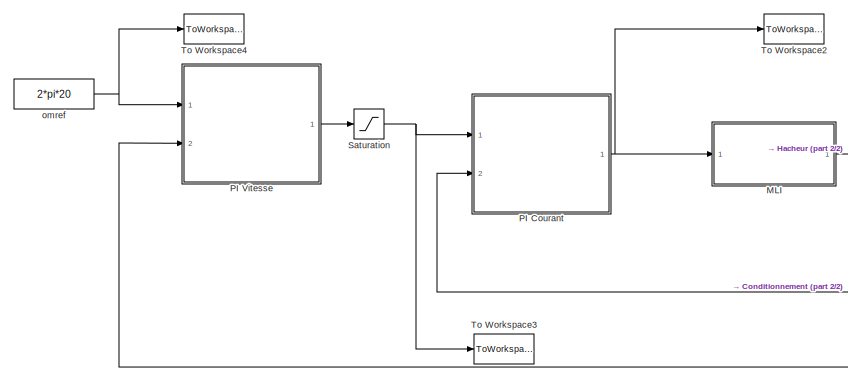
[diagram: root canvas - part 1/2, top left region]
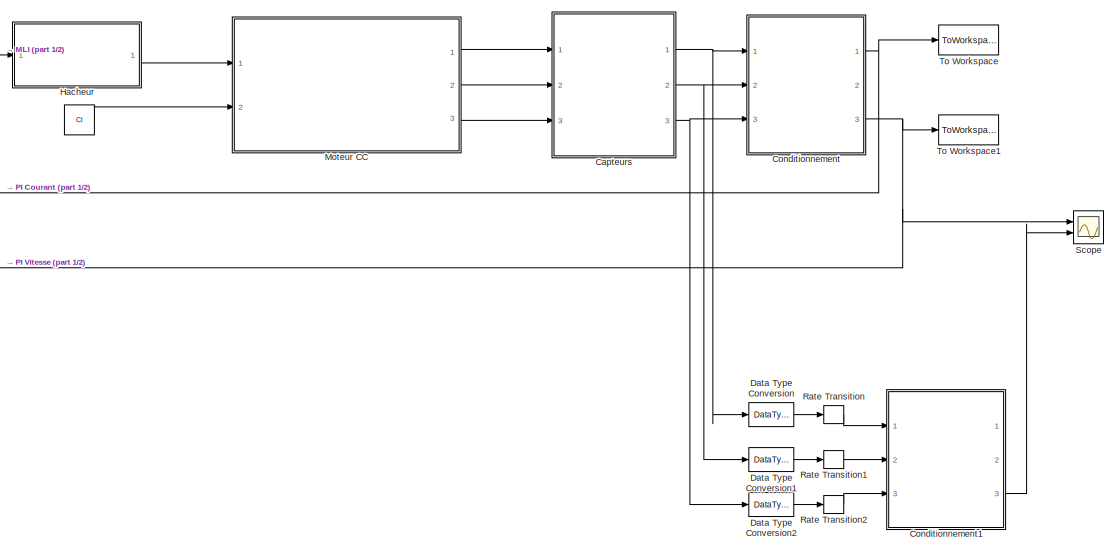
[diagram: root canvas - part 2/2, right side, full height]
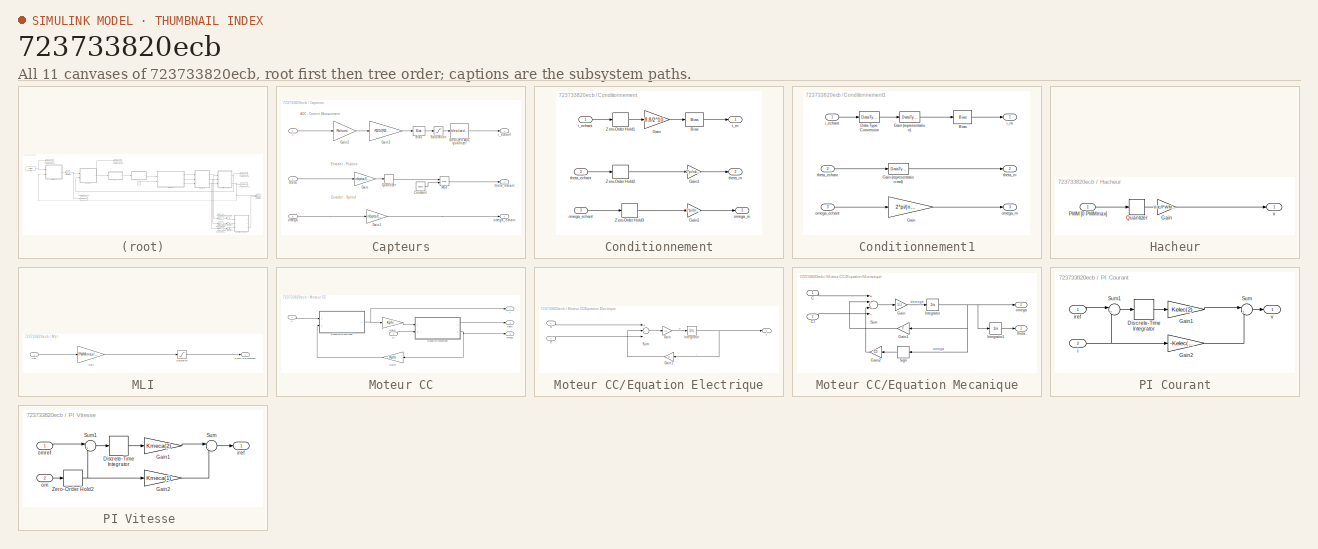
[diagram: thumbnail index - all 11 canvases of the model, root first then tree order]
MODEL slx_723733820ecb
KIND model
CONFIG AbsTol = auto
CONFIG EnableMultiTasking = off
CONFIG FixedStep = 1e-4
CONFIG MaxStep = 1e-4
CONFIG MinStep = auto
CONFIG RelTol = 1e-3
CONFIG SampleTimeConstraint = Unconstrained
CONFIG Solver = VariableStepAuto
CONFIG SolverName = VariableStepAuto
CONFIG StartTime = 0.0
CONFIG StopTime = Tf
BLOCK [Constant]  
  Value = Cl
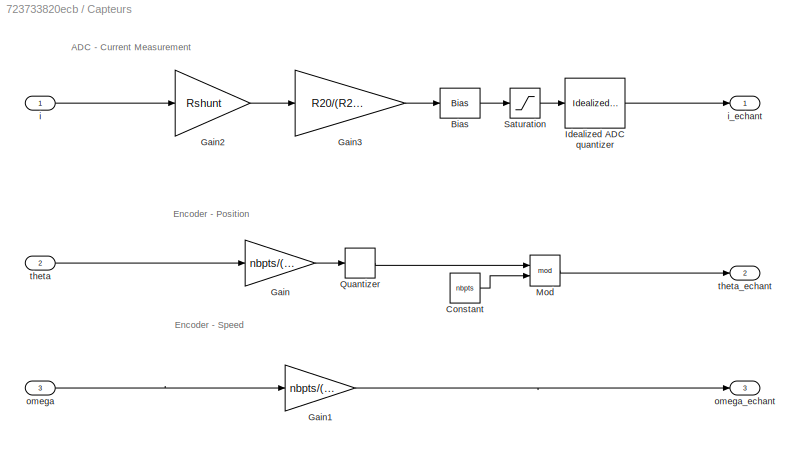
BLOCK [SubSystem] Capteurs
  Ports = [3, 3]
  RequestExecContextInheritance = off
  Variant = off
BLOCK [Bias] Capteurs/Bias
  Bias = Vcc/2
  SaturateOnIntegerOverflow = off
BLOCK [Constant] Capteurs/Constant
  Value = nbpts
BLOCK [Gain] Capteurs/Gain
  Gain = nbpts/(2*pi)
  OutDataTypeStr = Inherit: Inherit via internal rule
  ParamDataTypeStr = Inherit: Inherit via internal rule
  SaturateOnIntegerOverflow = off
BLOCK [Gain] Capteurs/Gain1
  Gain = nbpts/(2*pi)*Ts
  OutDataTypeStr = Inherit: Inherit via internal rule
  ParamDataTypeStr = Inherit: Inherit via internal rule
  SaturateOnIntegerOverflow = off
BLOCK [Gain] Capteurs/Gain2
  Gain = Rshunt
  OutDataTypeStr = Inherit: Inherit via internal rule
  ParamDataTypeStr = Inherit: Inherit via internal rule
  SaturateOnIntegerOverflow = off
BLOCK [Gain] Capteurs/Gain3
  Gain = R20/(R22+R23)
  OutDataTypeStr = Inherit: Inherit via internal rule
  ParamDataTypeStr = Inherit: Inherit via internal rule
  SaturateOnIntegerOverflow = off
BLOCK [Reference] Capteurs/Idealized ADC quantizer  REF=simulink_extras/Additional
Discrete/Idealized ADC quantizer
  AttributesFormatString = (settings: %<NumberOfConverterBits>-bit converter\nVmin: %<Vmin>, Vmax: %<Vmax>)
  Ports = [1, 1]
  SourceBlock = simulink_extras/Additional\nDiscrete/Idealized ADC quantizer
  SourceProductBaseCode = SL
  SourceProductName = Simulink
  SourceType = IdealADC
BLOCK [Math] Capteurs/Mod
  Operator = mod
  Ports = [2, 1]
BLOCK [Quantizer] Capteurs/Quantizer
  QuantizationInterval = 1
BLOCK [Saturate] Capteurs/Saturation
  InputPortMap = u0
  LowerLimit = 0
  Ports = [1, 1]
  UpperLimit = Vcc
BLOCK [Inport] Capteurs/i
  IconDisplay = Port number
BLOCK [Outport] Capteurs/i_echant
  IconDisplay = Port number
BLOCK [Inport] Capteurs/omega
  IconDisplay = Port number
  Port = 3
BLOCK [Outport] Capteurs/omega_echant
  IconDisplay = Port number
  Port = 3
BLOCK [Inport] Capteurs/theta
  IconDisplay = Port number
  Port = 2
BLOCK [Outport] Capteurs/theta_echant
  IconDisplay = Port number
  Port = 2
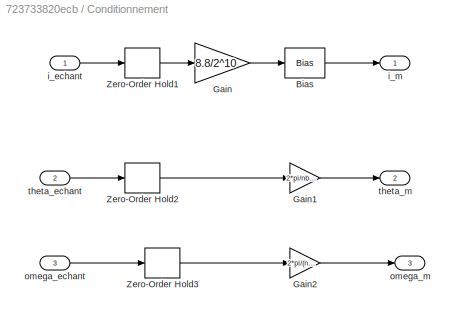
BLOCK [SubSystem] Conditionnement
  Ports = [3, 3]
  RequestExecContextInheritance = off
  Variant = off
BLOCK [Bias] Conditionnement/Bias
  Bias = -4.4
  SaturateOnIntegerOverflow = off
BLOCK [Gain] Conditionnement/Gain
  Gain = 8.8/2^10
  OutDataTypeStr = Inherit: Inherit via internal rule
  ParamDataTypeStr = Inherit: Inherit via internal rule
  SaturateOnIntegerOverflow = off
BLOCK [Gain] Conditionnement/Gain1
  Gain = 2*pi/nbpts
  OutDataTypeStr = Inherit: Inherit via internal rule
  ParamDataTypeStr = Inherit: Inherit via internal rule
  SaturateOnIntegerOverflow = off
BLOCK [Gain] Conditionnement/Gain2
  Gain = 2*pi/(nbpts*Ts)
  OutDataTypeStr = Inherit: Inherit via internal rule
  ParamDataTypeStr = Inherit: Inherit via internal rule
  SaturateOnIntegerOverflow = off
BLOCK [ZeroOrderHold] Conditionnement/Zero-Order Hold1
  SampleTime = Ts
BLOCK [ZeroOrderHold] Conditionnement/Zero-Order Hold2
  SampleTime = Ts
BLOCK [ZeroOrderHold] Conditionnement/Zero-Order Hold3
  SampleTime = Ts
BLOCK [Inport] Conditionnement/i_echant
  IconDisplay = Port number
BLOCK [Outport] Conditionnement/i_m
  IconDisplay = Port number
BLOCK [Inport] Conditionnement/omega_echant
  IconDisplay = Port number
  Port = 3
BLOCK [Outport] Conditionnement/omega_m
  IconDisplay = Port number
  Port = 3
BLOCK [Inport] Conditionnement/theta_echant
  IconDisplay = Port number
  Port = 2
BLOCK [Outport] Conditionnement/theta_m
  IconDisplay = Port number
  Port = 2
BLOCK [SubSystem] Conditionnement1
  Ports = [3, 3]
  RequestExecContextInheritance = off
  Variant = off
BLOCK [Bias] Conditionnement1/Bias
  Bias = -4.4
  SaturateOnIntegerOverflow = off
BLOCK [DataTypeConversion] Conditionnement1/Data Type Conversion
  OutDataTypeStr = int16
  RndMeth = Floor
  SaturateOnIntegerOverflow = off
BLOCK [Gain] Conditionnement1/Gain
  Gain = 2*pi/(nbpts *Ts)
  OutDataTypeStr = fixdt(1,16)
  OutMax = [100]
  OutMin = [-100]
  ParamDataTypeStr = Inherit: Inherit via internal rule
  SaturateOnIntegerOverflow = off
BLOCK [DataTypeConversion] Conditionnement1/Gain (representation rad)
  ConvertRealWorld = Stored Integer (SI)
  OutDataTypeStr = fixdt(1,16,2*pi/nbpts,0)
  RndMeth = Floor
  SaturateOnIntegerOverflow = off
BLOCK [DataTypeConversion] Conditionnement1/Gain (representation)
  ConvertRealWorld = Stored Integer (SI)
  OutDataTypeStr = fixdt(1,16,8.8/2^10,0)
  RndMeth = Floor
  SaturateOnIntegerOverflow = off
BLOCK [Inport] Conditionnement1/i_echant
  IconDisplay = Port number
BLOCK [Outport] Conditionnement1/i_m
  IconDisplay = Port number
BLOCK [Inport] Conditionnement1/omega_echant
  IconDisplay = Port number
  Port = 3
BLOCK [Outport] Conditionnement1/omega_m
  IconDisplay = Port number
  Port = 3
BLOCK [Inport] Conditionnement1/theta_echant
  IconDisplay = Port number
  Port = 2
BLOCK [Outport] Conditionnement1/theta_m
  IconDisplay = Port number
  Port = 2
BLOCK [DataTypeConversion] Data Type Conversion
  OutDataTypeStr = uint16
  RndMeth = Floor
  SaturateOnIntegerOverflow = off
BLOCK [DataTypeConversion] Data Type Conversion1
  OutDataTypeStr = int16
  RndMeth = Floor
  SaturateOnIntegerOverflow = off
BLOCK [DataTypeConversion] Data Type Conversion2
  OutDataTypeStr = int16
  RndMeth = Floor
  SaturateOnIntegerOverflow = off
BLOCK [SubSystem] Hacheur
  Ports = [1, 1]
  RequestExecContextInheritance = off
  Variant = off
BLOCK [Gain] Hacheur/Gain
  Gain = Vdc/PWMmax
  OutDataTypeStr = Inherit: Inherit via internal rule
  ParamDataTypeStr = Inherit: Inherit via internal rule
  SaturateOnIntegerOverflow = off
BLOCK [Inport] Hacheur/PWM [0 PWMmax]
  IconDisplay = Port number
BLOCK [Quantizer] Hacheur/Quantizer
  QuantizationInterval = 1
BLOCK [Outport] Hacheur/v
  IconDisplay = Port number
BLOCK [SubSystem] MLI
  Ports = [1, 1]
  RequestExecContextInheritance = off
  Variant = off
BLOCK [Gain] MLI/Gain
  Gain = PWMmax/Vdc
  OutDataTypeStr = Inherit: Inherit via internal rule
  ParamDataTypeStr = Inherit: Inherit via internal rule
  SaturateOnIntegerOverflow = off
BLOCK [Outport] MLI/PWM [0 PWMmax]
  IconDisplay = Port number
BLOCK [Saturate] MLI/Saturation
  InputPortMap = u0
  Ports = [1, 1]
  UpperLimit = PWMmax
BLOCK [Inport] MLI/Vdc
  IconDisplay = Port number
BLOCK [SubSystem] Moteur CC
  Ports = [2, 3]
  RequestExecContextInheritance = off
  Variant = off
BLOCK [Inport] Moteur CC/Cl
  IconDisplay = Port number
  Port = 2
BLOCK [SubSystem] Moteur CC/Equation Electrique
  Ports = [2, 1]
  RequestExecContextInheritance = off
  Variant = off
BLOCK [Gain] Moteur CC/Equation Electrique/Gain
  Gain = 1/L
  OutDataTypeStr = Inherit: Inherit via internal rule
  ParamDataTypeStr = Inherit: Inherit via internal rule
  SaturateOnIntegerOverflow = off
BLOCK [Gain] Moteur CC/Equation Electrique/Gain1
  Gain = R
  OutDataTypeStr = Inherit: Inherit via internal rule
  ParamDataTypeStr = Inherit: Inherit via internal rule
  SaturateOnIntegerOverflow = off
BLOCK [Integrator] Moteur CC/Equation Electrique/Integrator
  Ports = [1, 1]
BLOCK [Sum] Moteur CC/Equation Electrique/Sum
  InputSameDT = off
  Inputs = +--
  OutDataTypeStr = Inherit: Inherit via internal rule
  Ports = [3, 1]
  SaturateOnIntegerOverflow = off
BLOCK [Inport] Moteur CC/Equation Electrique/e
  IconDisplay = Port number
  Port = 2
BLOCK [Outport] Moteur CC/Equation Electrique/i
  IconDisplay = Port number
BLOCK [Inport] Moteur CC/Equation Electrique/v
  IconDisplay = Port number
BLOCK [SubSystem] Moteur CC/Equation Mecanique
  Ports = [2, 2]
  RequestExecContextInheritance = off
  Variant = off
BLOCK [Inport] Moteur CC/Equation Mecanique/C
  IconDisplay = Port number
BLOCK [Inport] Moteur CC/Equation Mecanique/Cl
  IconDisplay = Port number
  Port = 2
BLOCK [Gain] Moteur CC/Equation Mecanique/Gain
  Gain = 1/J
  OutDataTypeStr = Inherit: Inherit via internal rule
  ParamDataTypeStr = Inherit: Inherit via internal rule
  SaturateOnIntegerOverflow = off
BLOCK [Gain] Moteur CC/Equation Mecanique/Gain1
  Gain = F
  OutDataTypeStr = Inherit: Inherit via internal rule
  ParamDataTypeStr = Inherit: Inherit via internal rule
  SaturateOnIntegerOverflow = off
BLOCK [Gain] Moteur CC/Equation Mecanique/Gain2
  Gain = C0
  OutDataTypeStr = Inherit: Inherit via internal rule
  ParamDataTypeStr = Inherit: Inherit via internal rule
  SaturateOnIntegerOverflow = off
BLOCK [Integrator] Moteur CC/Equation Mecanique/Integrator
  Ports = [1, 1]
BLOCK [Integrator] Moteur CC/Equation Mecanique/Integrator1
  Ports = [1, 1]
BLOCK [Signum] Moteur CC/Equation Mecanique/Sign
BLOCK [Sum] Moteur CC/Equation Mecanique/Sum
  InputSameDT = off
  Inputs = +-+-
  OutDataTypeStr = Inherit: Inherit via internal rule
  Ports = [4, 1]
  SaturateOnIntegerOverflow = off
BLOCK [Outport] Moteur CC/Equation Mecanique/omega
  IconDisplay = Port number
  Port = 2
BLOCK [Outport] Moteur CC/Equation Mecanique/theta
  IconDisplay = Port number
BLOCK [Gain] Moteur CC/Gain1
  Gain = Kphi
  OutDataTypeStr = Inherit: Inherit via internal rule
  ParamDataTypeStr = Inherit: Inherit via internal rule
  SaturateOnIntegerOverflow = off
BLOCK [Gain] Moteur CC/Gain3  
  Gain = Kphi
  OutDataTypeStr = Inherit: Inherit via internal rule
  ParamDataTypeStr = Inherit: Inherit via internal rule
  SaturateOnIntegerOverflow = off
BLOCK [Outport] Moteur CC/i
  IconDisplay = Port number
BLOCK [Outport] Moteur CC/omega
  IconDisplay = Port number
  Port = 3
BLOCK [Outport] Moteur CC/theta
  IconDisplay = Port number
  Port = 2
BLOCK [Inport] Moteur CC/v
  IconDisplay = Port number
BLOCK [SubSystem] PI Courant
  Ports = [2, 1]
  RequestExecContextInheritance = off
  TreatAsAtomicUnit = on
  Variant = off
BLOCK [DiscreteIntegrator] PI Courant/Discrete-Time Integrator
  ICPrevOutput = DiscIntNeverNeededParam
  ICPrevScaledInput = DiscIntNeverNeededParam
  InitialConditionSetting = State (most efficient)
  Ports = [1, 1]
  SampleTime = -1
BLOCK [Gain] PI Courant/Gain1
  Gain = Kelec(2)
  OutDataTypeStr = Inherit: Inherit via internal rule
  ParamDataTypeStr = Inherit: Inherit via internal rule
  SaturateOnIntegerOverflow = off
BLOCK [Gain] PI Courant/Gain2
  Gain = -Kelec(1)
  OutDataTypeStr = Inherit: Inherit via internal rule
  ParamDataTypeStr = Inherit: Inherit via internal rule
  SaturateOnIntegerOverflow = off
BLOCK [Sum] PI Courant/Sum
  IconShape = round
  InputSameDT = off
  Inputs = |+-
  OutDataTypeStr = Inherit: Inherit via internal rule
  Ports = [2, 1]
  SaturateOnIntegerOverflow = off
BLOCK [Sum] PI Courant/Sum1
  IconShape = round
  InputSameDT = off
  Inputs = |+-
  OutDataTypeStr = Inherit: Inherit via internal rule
  Ports = [2, 1]
  SaturateOnIntegerOverflow = off
BLOCK [Inport] PI Courant/i
  IconDisplay = Port number
  Port = 2
BLOCK [Inport] PI Courant/iref
  IconDisplay = Port number
BLOCK [Outport] PI Courant/v
  IconDisplay = Port number
BLOCK [SubSystem] PI Vitesse 
  Ports = [2, 1]
  RequestExecContextInheritance = off
  TreatAsAtomicUnit = on
  Variant = off
BLOCK [DiscreteIntegrator] PI Vitesse /Discrete-Time Integrator
  ICPrevOutput = DiscIntNeverNeededParam
  ICPrevScaledInput = DiscIntNeverNeededParam
  InitialConditionSetting = State (most efficient)
  Ports = [1, 1]
  SampleTime = -1
BLOCK [Gain] PI Vitesse /Gain1
  Gain = Kmeca(2)
  OutDataTypeStr = Inherit: Inherit via internal rule
  ParamDataTypeStr = Inherit: Inherit via internal rule
  SaturateOnIntegerOverflow = off
BLOCK [Gain] PI Vitesse /Gain2
  Gain = Kmeca(1)
  OutDataTypeStr = Inherit: Inherit via internal rule
  ParamDataTypeStr = Inherit: Inherit via internal rule
  SaturateOnIntegerOverflow = off
BLOCK [Sum] PI Vitesse /Sum
  IconShape = round
  InputSameDT = off
  Inputs = |--
  OutDataTypeStr = Inherit: Inherit via internal rule
  Ports = [2, 1]
  SaturateOnIntegerOverflow = off
BLOCK [Sum] PI Vitesse /Sum1
  IconShape = round
  InputSameDT = off
  Inputs = |+-
  OutDataTypeStr = Inherit: Inherit via internal rule
  Ports = [2, 1]
  SaturateOnIntegerOverflow = off
BLOCK [ZeroOrderHold] PI Vitesse /Zero-Order Hold2
  SampleTime = Tsmeca
BLOCK [Outport] PI Vitesse /iref
  IconDisplay = Port number
BLOCK [Inport] PI Vitesse /om
  IconDisplay = Port number
  Port = 2
BLOCK [Inport] PI Vitesse /omref
  IconDisplay = Port number
BLOCK [RateTransition] Rate Transition
  Deterministic = off
  OutPortSampleTime = Ts
BLOCK [RateTransition] Rate Transition1
  Deterministic = off
  OutPortSampleTime = Ts
BLOCK [RateTransition] Rate Transition2
  Deterministic = off
  OutPortSampleTime = Ts
BLOCK [Saturate] Saturation
  InputPortMap = u0
  LowerLimit = -Imax
  Ports = [1, 1]
  UpperLimit = Imax
BLOCK [Scope] Scope
  NumInputPorts = 2
  Ports = [2]
  ScopeSpecificationString = Simulink.scopes.TimeScopeBlockCfg('CurrentConfiguration', extmgr.ConfigurationSet(extmgr.Configuration('Core','General UI',true),extmgr.Configuration('Core','Source UI',true),extmgr.Configuration('Sources','WiredSimulink',true),extmgr.Configuration('Visuals','Time Domain',true,'SerializedDisplays',{struct('MinYLimReal','-0.83124','MaxYLimReal','7.48113','YLabelReal','','MinYLimMag','0.00000','MaxY...<+2014ch>
BLOCK [ToWorkspace] To Workspace
  FixptAsFi = on
  MaxDataPoints = inf
  Ports = [1]
  SampleTime = -1
  Save2DSignal = 3-D array (concatenate along third dimension)
  SaveFormat = Timeseries
  VariableName = i
BLOCK [ToWorkspace] To Workspace1
  FixptAsFi = on
  MaxDataPoints = inf
  Ports = [1]
  SampleTime = -1
  Save2DSignal = 3-D array (concatenate along third dimension)
  SaveFormat = Timeseries
  VariableName = omega
BLOCK [ToWorkspace] To Workspace2
  FixptAsFi = on
  MaxDataPoints = inf
  Ports = [1]
  SampleTime = -1
  Save2DSignal = 3-D array (concatenate along third dimension)
  SaveFormat = Timeseries
  VariableName = v
BLOCK [ToWorkspace] To Workspace3
  FixptAsFi = on
  MaxDataPoints = inf
  Ports = [1]
  SampleTime = -1
  Save2DSignal = 3-D array (concatenate along third dimension)
  SaveFormat = Timeseries
  VariableName = iref
BLOCK [ToWorkspace] To Workspace4
  FixptAsFi = on
  MaxDataPoints = inf
  Ports = [1]
  SampleTime = -1
  Save2DSignal = 3-D array (concatenate along third dimension)
  SaveFormat = Timeseries
  VariableName = omref
BLOCK [Constant] omref
  Value = 2*pi*20
ANNOTATION Capteurs: ADC - Current Measurement
ANNOTATION Capteurs: Encoder - Position
ANNOTATION Capteurs: Encoder - Speed
LINE  :1 -> Moteur CC:2
LINE Capteurs/Bias:1 -> Capteurs/Saturation:1
LINE Capteurs/Constant:1 -> Capteurs/Mod:2
LINE Capteurs/Gain1:1 -> Capteurs/omega_echant:1
LINE Capteurs/Gain2:1 -> Capteurs/Gain3:1
LINE Capteurs/Gain3:1 -> Capteurs/Bias:1
LINE Capteurs/Gain:1 -> Capteurs/Quantizer:1
LINE Capteurs/Idealized ADC quantizer:1 -> Capteurs/i_echant:1
LINE Capteurs/Mod:1 -> Capteurs/theta_echant:1
LINE Capteurs/Quantizer:1 -> Capteurs/Mod:1
LINE Capteurs/Saturation:1 -> Capteurs/Idealized ADC quantizer:1
LINE Capteurs/i:1 -> Capteurs/Gain2:1
LINE Capteurs/omega:1 -> Capteurs/Gain1:1
LINE Capteurs/theta:1 -> Capteurs/Gain:1
NET Capteurs:1 -> Conditionnement:1, Data Type Conversion:1
NET Capteurs:2 -> Conditionnement:2, Data Type Conversion1:1
NET Capteurs:3 -> Conditionnement:3, Data Type Conversion2:1
LINE Conditionnement/Bias:1 -> Conditionnement/i_m:1
LINE Conditionnement/Gain1:1 -> Conditionnement/theta_m:1
LINE Conditionnement/Gain2:1 -> Conditionnement/omega_m:1
LINE Conditionnement/Gain:1 -> Conditionnement/Bias:1
LINE Conditionnement/Zero-Order Hold1:1 -> Conditionnement/Gain:1
LINE Conditionnement/Zero-Order Hold2:1 -> Conditionnement/Gain1:1
LINE Conditionnement/Zero-Order Hold3:1 -> Conditionnement/Gain2:1
LINE Conditionnement/i_echant:1 -> Conditionnement/Zero-Order Hold1:1
LINE Conditionnement/omega_echant:1 -> Conditionnement/Zero-Order Hold3:1
LINE Conditionnement/theta_echant:1 -> Conditionnement/Zero-Order Hold2:1
LINE Conditionnement1/Bias:1 -> Conditionnement1/i_m:1
LINE Conditionnement1/Data Type Conversion:1 -> Conditionnement1/Gain (representation):1
LINE Conditionnement1/Gain (representation rad):1 -> Conditionnement1/theta_m:1
LINE Conditionnement1/Gain (representation):1 -> Conditionnement1/Bias:1
LINE Conditionnement1/Gain:1 -> Conditionnement1/omega_m:1
LINE Conditionnement1/i_echant:1 -> Conditionnement1/Data Type Conversion:1
LINE Conditionnement1/omega_echant:1 -> Conditionnement1/Gain:1
LINE Conditionnement1/theta_echant:1 -> Conditionnement1/Gain (representation rad):1
LINE Conditionnement1:3 -> Scope:2
NET Conditionnement:1 -> PI Courant:2, To Workspace:1
NET Conditionnement:3 -> PI Vitesse :2, Scope:1, To Workspace1:1
LINE Data Type Conversion1:1 -> Rate Transition1:1
LINE Data Type Conversion2:1 -> Rate Transition2:1
LINE Data Type Conversion:1 -> Rate Transition:1
LINE Hacheur/Gain:1 -> Hacheur/v:1
LINE Hacheur/PWM [0 PWMmax]:1 -> Hacheur/Quantizer:1
LINE Hacheur/Quantizer:1 -> Hacheur/Gain:1
LINE Hacheur:1 -> Moteur CC:1
LINE MLI/Gain:1 -> MLI/Saturation:1
LINE MLI/Saturation:1 -> MLI/PWM [0 PWMmax]:1
LINE MLI/Vdc:1 -> MLI/Gain:1
LINE MLI:1 -> Hacheur:1
LINE Moteur CC/Cl:1 -> Moteur CC/Equation Mecanique:2
LINE Moteur CC/Equation Electrique/Gain1:1 -> Moteur CC/Equation Electrique/Sum:2
LINE Moteur CC/Equation Electrique/Gain:1 -> Moteur CC/Equation Electrique/Integrator:1
NET Moteur CC/Equation Electrique/Integrator:1 -> Moteur CC/Equation Electrique/Gain1:1, Moteur CC/Equation Electrique/i:1
LINE Moteur CC/Equation Electrique/Sum:1 -> Moteur CC/Equation Electrique/Gain:1
LINE Moteur CC/Equation Electrique/e:1 -> Moteur CC/Equation Electrique/Sum:3
LINE Moteur CC/Equation Electrique/v:1 -> Moteur CC/Equation Electrique/Sum:1
NET Moteur CC/Equation Electrique:1 -> Moteur CC/Gain1:1, Moteur CC/i:1
LINE Moteur CC/Equation Mecanique/C:1 -> Moteur CC/Equation Mecanique/Sum:1
LINE Moteur CC/Equation Mecanique/Cl:1 -> Moteur CC/Equation Mecanique/Sum:4
LINE Moteur CC/Equation Mecanique/Gain1:1 -> Moteur CC/Equation Mecanique/Sum:2
LINE Moteur CC/Equation Mecanique/Gain2:1 -> Moteur CC/Equation Mecanique/Sum:3
LINE Moteur CC/Equation Mecanique/Gain:1 -> Moteur CC/Equation Mecanique/Integrator:1
LINE Moteur CC/Equation Mecanique/Integrator1:1 -> Moteur CC/Equation Mecanique/theta:1
NET Moteur CC/Equation Mecanique/Integrator:1 -> Moteur CC/Equation Mecanique/Gain1:1, Moteur CC/Equation Mecanique/Integrator1:1, Moteur CC/Equation Mecanique/Sign:1, Moteur CC/Equation Mecanique/omega:1
LINE Moteur CC/Equation Mecanique/Sign:1 -> Moteur CC/Equation Mecanique/Gain2:1
LINE Moteur CC/Equation Mecanique/Sum:1 -> Moteur CC/Equation Mecanique/Gain:1
LINE Moteur CC/Equation Mecanique:1 -> Moteur CC/theta:1
NET Moteur CC/Equation Mecanique:2 -> Moteur CC/Gain3  :1, Moteur CC/omega:1
LINE Moteur CC/Gain1:1 -> Moteur CC/Equation Mecanique:1
LINE Moteur CC/Gain3  :1 -> Moteur CC/Equation Electrique:2
LINE Moteur CC/v:1 -> Moteur CC/Equation Electrique:1
LINE Moteur CC:1 -> Capteurs:1
LINE Moteur CC:2 -> Capteurs:2
LINE Moteur CC:3 -> Capteurs:3
LINE PI Courant/Discrete-Time Integrator:1 -> PI Courant/Gain1:1
LINE PI Courant/Gain1:1 -> PI Courant/Sum:1
LINE PI Courant/Gain2:1 -> PI Courant/Sum:2
LINE PI Courant/Sum1:1 -> PI Courant/Discrete-Time Integrator:1
LINE PI Courant/Sum:1 -> PI Courant/v:1
NET PI Courant/i:1 -> PI Courant/Gain2:1, PI Courant/Sum1:2
LINE PI Courant/iref:1 -> PI Courant/Sum1:1
NET PI Courant:1 -> MLI:1, To Workspace2:1
LINE PI Vitesse /Discrete-Time Integrator:1 -> PI Vitesse /Gain1:1
LINE PI Vitesse /Gain1:1 -> PI Vitesse /Sum:1
LINE PI Vitesse /Gain2:1 -> PI Vitesse /Sum:2
LINE PI Vitesse /Sum1:1 -> PI Vitesse /Discrete-Time Integrator:1
LINE PI Vitesse /Sum:1 -> PI Vitesse /iref:1
NET PI Vitesse /Zero-Order Hold2:1 -> PI Vitesse /Gain2:1, PI Vitesse /Sum1:2
LINE PI Vitesse /om:1 -> PI Vitesse /Zero-Order Hold2:1
LINE PI Vitesse /omref:1 -> PI Vitesse /Sum1:1
LINE PI Vitesse :1 -> Saturation:1
LINE Rate Transition1:1 -> Conditionnement1:2
LINE Rate Transition2:1 -> Conditionnement1:3
LINE Rate Transition:1 -> Conditionnement1:1
NET Saturation:1 -> PI Courant:1, To Workspace3:1
NET omref:1 -> PI Vitesse :1, To Workspace4:1
note: NET lines group one-source signal fan-out (src -> all destinations, sorted); 1:1 wires keep LINE
